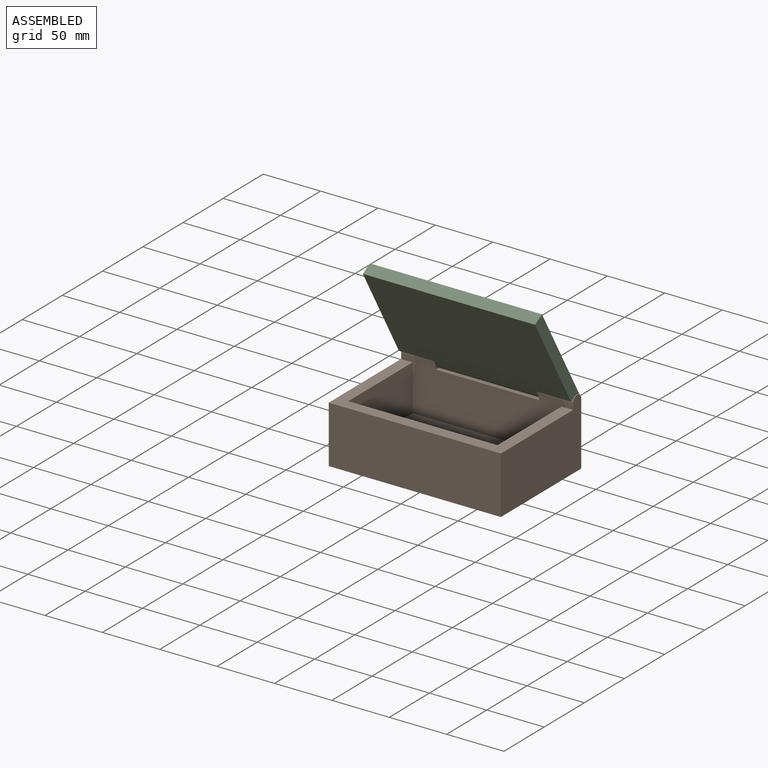
[diagram: assembled view]
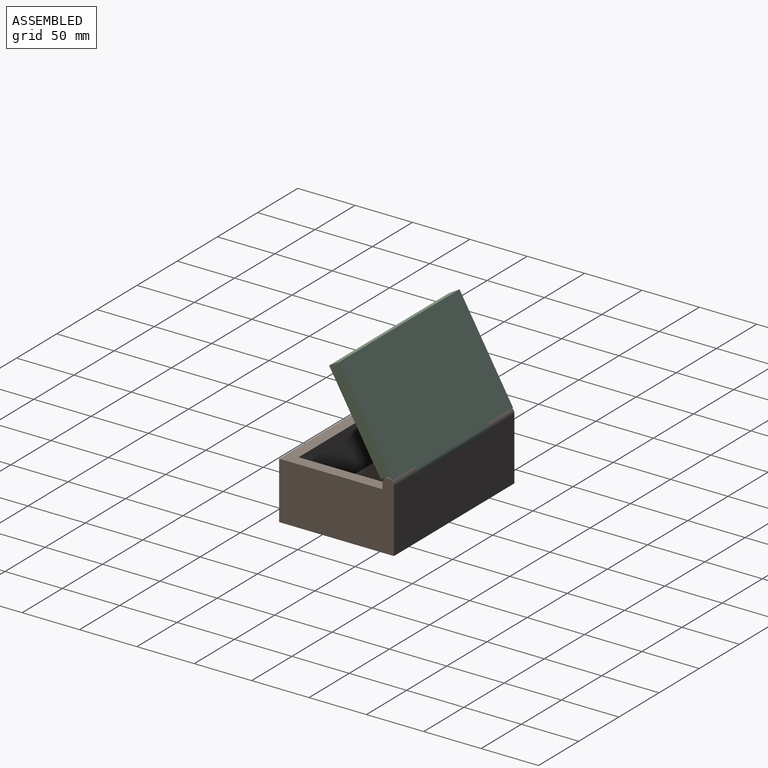
[diagram: assembled view, second angle]
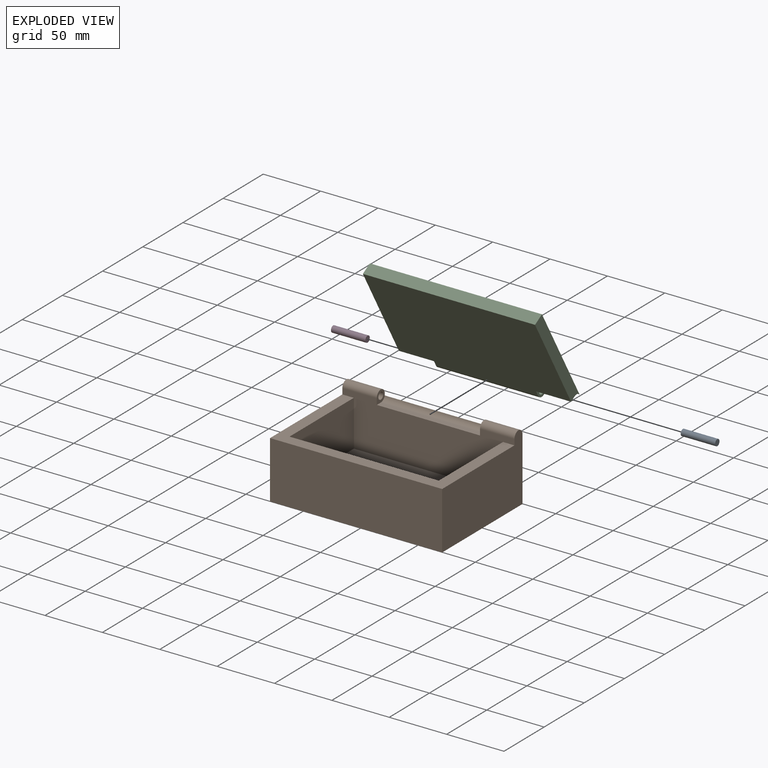
[diagram: exploded view]
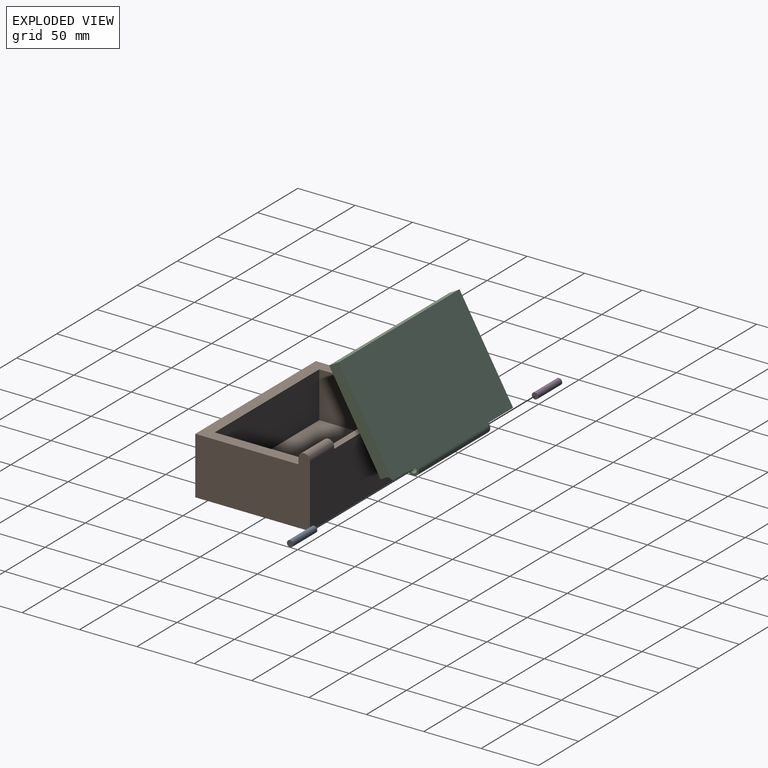
[diagram: exploded view, second angle]
ASSEMBLY  parts=4 mates=3
PART A: 3 faces, bbox 30x5.5x5.5 mm
  f0: cylinder r=2.75mm len=30mm, axis (-1,0,0), area 518.4mm2, adj f1,f2
  f1: plane 5.5x5.5mm, normal (1,0,0), area 23.8mm2, adj f0
  f2: plane 5.5x5.5mm, normal (-1,0,0), area 23.8mm2, adj f0
PART B: 21 faces, bbox 150x100x60 mm
  f0: plane 130x40mm, normal (0,1,0), area 5200mm2, adj f1,f14,f15,f16
  f1: plane 130x80mm, normal (0,0,1), area 10400mm2, adj f0,f3,f15,f16
  f2: cylinder r=5mm len=30mm, axis (-1,0,0), area 471.2mm2, adj f3,f4,f5,f6
  f3: plane 150x45mm, normal (0,-1,0), area 5477.5mm2, adj f1,f2,f5,f6,f8,f9,f12,f13
  f4: plane 150x55mm, normal (0,1,0), area 8105.9mm2, adj f2,f5,f6,f7,f9,f11,f12,f13
  f5: plane 100x60mm, normal (1,0,0), area 5089.3mm2, adj f2,f3,f4,f10,f11,f14
  f6: plane 10.25x10mm, normal (-1,0,0), area 58.6mm2, adj f2,f3,f4,f7,f8,f19
  f7: cylinder r=5.25mm len=90mm, axis (-1,0,0), area 595.8mm2, adj f4,f6,f8,f13
  f8: plane 90x5mm, normal (0,0,1), area 450mm2, adj f3,f6,f7,f13
  f9: plane 100x60mm, normal (-1,0,0), area 5089.3mm2, adj f3,f4,f10,f11,f12,f14
  f10: plane 150x50mm, normal (0,-1,0), area 7500mm2, adj f5,f9,f11,f14
  f11: plane 150x100mm, normal (0,0,-1), area 15000mm2, adj f4,f5,f9,f10
  f12: cylinder r=5mm len=30mm, axis (1,0,0), area 471.2mm2, adj f3,f4,f9,f13
  f13: plane 10.25x10mm, normal (1,0,0), area 58.6mm2, adj f3,f4,f7,f8,f12,f18
  f14: plane 150x90mm, normal (0,0,1), area 3100mm2, adj f0,f3,f5,f9,f10,f15,f16
  f15: plane 80x40mm, normal (-1,0,0), area 3200mm2, adj f0,f1,f3,f14
  f16: plane 80x40mm, normal (1,0,0), area 3200mm2, adj f0,f1,f3,f14
  f17: cone r=0mm half-angle=59deg, axis (1,0,0), area 33mm2, adj f18
  f18: cylinder r=3mm len=15mm, axis (1,0,0), area 282.7mm2, adj f13,f17
  f19: cylinder r=3mm len=15mm, axis (-1,0,0), area 282.7mm2, adj f6,f20
  f20: cone r=0mm half-angle=59deg, axis (-1,0,0), area 33mm2, adj f19
PART C: 16 faces, bbox 150x100x10 mm
  f0: plane 30.5x5mm, normal (0,1,0), area 152.5mm2, adj f1,f4,f8,f11
  f1: cylinder r=5.25mm len=30.5mm, axis (-1,0,0), area 201.9mm2, adj f0,f2,f8,f11
  f2: plane 150x95mm, normal (0,0,1), area 14152.4mm2, adj f1,f3,f6,f7,f8,f9,f10,f11
  f3: plane 150x10mm, normal (0,-1,0), area 1500mm2, adj f2,f4,f7,f8
  f4: plane 150x95mm, normal (0,0,-1), area 13929.8mm2, adj f0,f3,f5,f7,f8,f9,f10,f11
  f5: plane 30.5x5mm, normal (0,1,0), area 152.5mm2, adj f4,f6,f7,f10
  f6: cylinder r=5.25mm len=30.5mm, axis (-1,0,0), area 201.9mm2, adj f2,f5,f7,f10
  f7: plane 93.4x10mm, normal (1,0,0), area 902.4mm2, adj f2,f3,f4,f5,f6
  f8: plane 93.4x10mm, normal (-1,0,0), area 902.4mm2, adj f0,f1,f2,f3,f4
  f9: cylinder r=5mm len=89mm, axis (-1,0,0), area 1398mm2, adj f2,f4,f10,f11
  f10: plane 10.25x10mm, normal (1,0,0), area 58.6mm2, adj f2,f4,f5,f6,f9,f15
  f11: plane 10.25x10mm, normal (-1,0,0), area 58.6mm2, adj f0,f1,f2,f4,f9,f13
  f12: cone r=0mm half-angle=59deg, axis (-1,0,0), area 33mm2, adj f13
  f13: cylinder r=3mm len=15mm, axis (-1,0,0), area 282.7mm2, adj f11,f12
  f14: cone r=0mm half-angle=59deg, axis (1,0,0), area 33mm2, adj f15
  f15: cylinder r=3mm len=15mm, axis (1,0,0), area 282.7mm2, adj f10,f14
PART D: same geometry as A
PLACE A t=(45.5,-38.21,-36.34)mm
PLACE B t=(0.5,-38.21,-36.34)mm
PLACE C rot(axis=(-1,0,0),60deg) t=(0,-38.21,-36.34)mm
PLACE D t=(-44.5,-38.21,-36.34)mm
MATE revolute D.f0 <-> C.f12  axis (1,0,0) through (-29.5,-38.21,-36.34)mm
MATE revolute A.f0 <-> B.f2  axis (1,0,0) through (60.5,-38.21,-36.34)mm
MATE revolute D.f0 <-> B.f2  axis (-1,0,0) through (-59.5,-38.21,-36.34)mm
